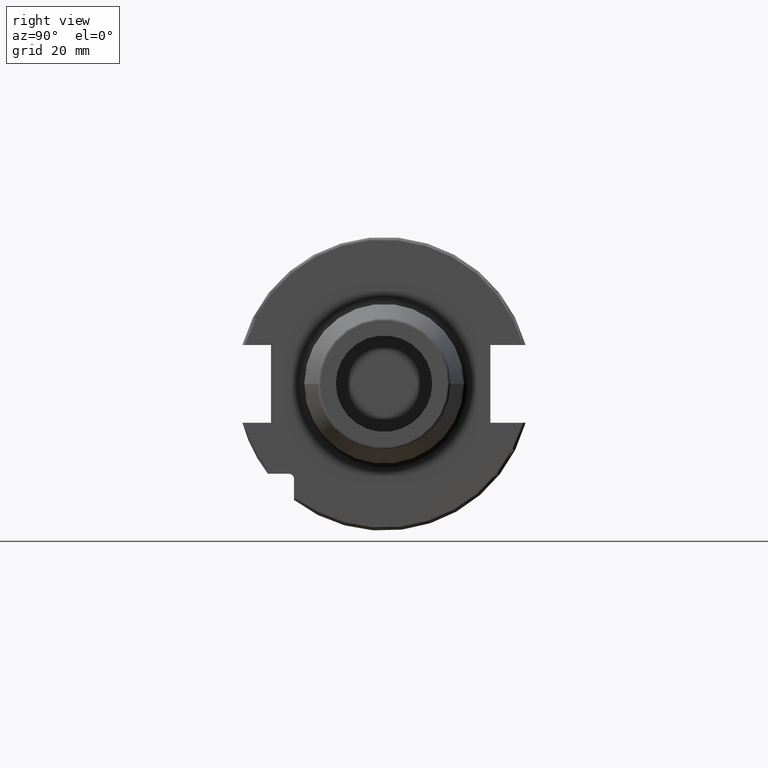
[diagram: clean part render]
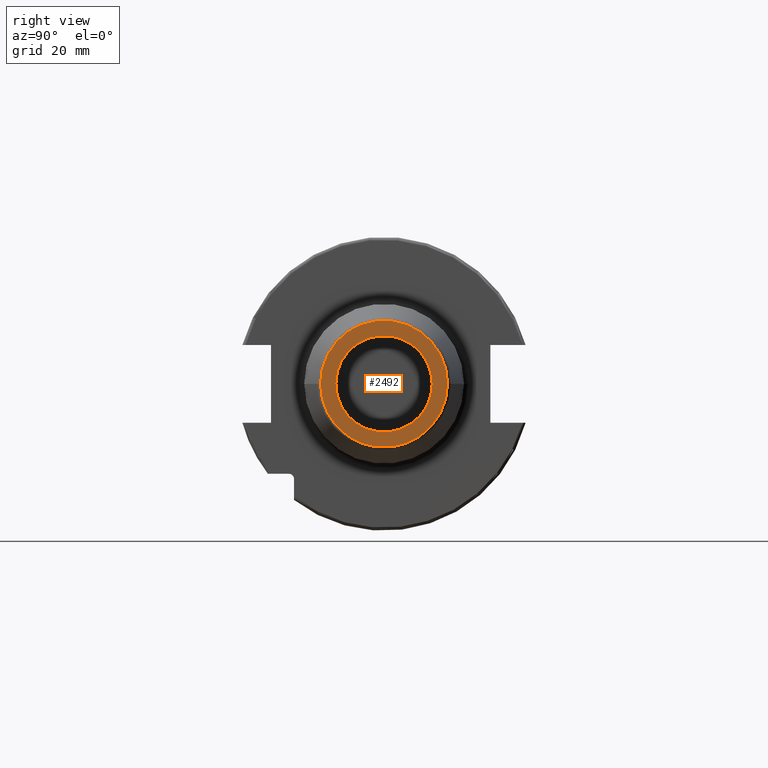
[diagram: same view with one face highlighted and labeled with its STEP entity id]
A machine part, right view. The second image highlights one B-rep face of the part: STEP entity #2492.
In plain terms, the highlighted planar face has unit normal (1, 0, 0).
Its self-contained STEP definition (entity closure, byte-faithful):
#962=CARTESIAN_POINT('',(1.E2,0.E0,0.E0));
#963=DIRECTION('',(-1.E0,0.E0,0.E0));
#964=DIRECTION('',(0.E0,1.E0,0.E0));
#965=AXIS2_PLACEMENT_3D('',#962,#963,#964);
#967=CARTESIAN_POINT('',(1.E2,0.E0,0.E0));
#968=DIRECTION('',(-1.E0,0.E0,0.E0));
#969=DIRECTION('',(0.E0,-1.E0,0.E0));
#970=AXIS2_PLACEMENT_3D('',#967,#968,#969);
#972=CARTESIAN_POINT('',(1.E2,0.E0,0.E0));
#973=DIRECTION('',(-1.E0,0.E0,0.E0));
#974=DIRECTION('',(0.E0,-1.E0,0.E0));
#975=AXIS2_PLACEMENT_3D('',#972,#973,#974);
#977=CARTESIAN_POINT('',(1.E2,0.E0,0.E0));
#978=DIRECTION('',(-1.E0,0.E0,0.E0));
#979=DIRECTION('',(0.E0,1.E0,0.E0));
#980=AXIS2_PLACEMENT_3D('',#977,#978,#979);
#1440=CARTESIAN_POINT('',(1.E2,2.107560950834E1,0.E0));
#1441=CARTESIAN_POINT('',(1.E2,-2.107560950834E1,0.E0));
#1442=VERTEX_POINT('',#1440);
#1443=VERTEX_POINT('',#1441);
#1456=CARTESIAN_POINT('',(1.E2,-1.6E1,0.E0));
#1457=CARTESIAN_POINT('',(1.E2,1.6E1,0.E0));
#1458=VERTEX_POINT('',#1456);
#1459=VERTEX_POINT('',#1457);
#2477=CARTESIAN_POINT('',(1.E2,0.E0,0.E0));
#2478=DIRECTION('',(1.E0,0.E0,0.E0));
#2479=DIRECTION('',(0.E0,-1.E0,0.E0));
#2480=AXIS2_PLACEMENT_3D('',#2477,#2478,#2479);
#2481=PLANE('',#2480);
#2482=ORIENTED_EDGE('',*,*,#2444,.T.);
#2483=ORIENTED_EDGE('',*,*,#2459,.T.);
#2484=EDGE_LOOP('',(#2482,#2483));
#2485=FACE_OUTER_BOUND('',#2484,.F.);
#2487=ORIENTED_EDGE('',*,*,#2486,.F.);
#2489=ORIENTED_EDGE('',*,*,#2488,.F.);
#2490=EDGE_LOOP('',(#2487,#2489));
#2491=FACE_BOUND('',#2490,.F.);
#2492=ADVANCED_FACE('',(#2485,#2491),#2481,.T.);
#966=CIRCLE('',#965,2.107560950834E1);
#971=CIRCLE('',#970,2.107560950834E1);
#976=CIRCLE('',#975,1.6E1);
#981=CIRCLE('',#980,1.6E1);
#2444=EDGE_CURVE('',#1442,#1443,#966,.T.);
#2459=EDGE_CURVE('',#1443,#1442,#971,.T.);
#2486=EDGE_CURVE('',#1458,#1459,#976,.T.);
#2488=EDGE_CURVE('',#1459,#1458,#981,.T.);